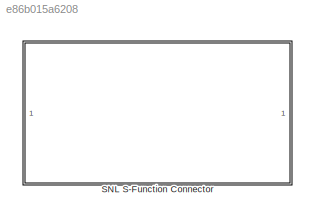
MODEL slx_e86b015a6208
KIND model
CONFIG AbsTol = auto
CONFIG EnableMultiTasking = off
CONFIG FixedStep = auto
CONFIG MaxStep = auto
CONFIG MinStep = auto
CONFIG RelTol = 1e-3
CONFIG SampleTimeConstraint = Unconstrained
CONFIG SolverName = VariableStepAuto
CONFIG StartTime = 0.0
CONFIG StopTime = 10.0
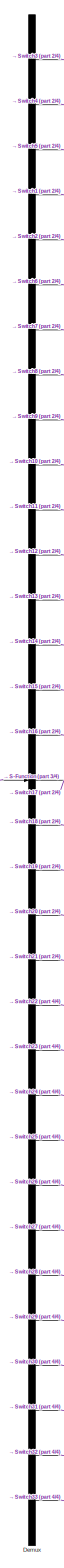
[diagram: SNL S-Function Connector - part 1/4, center side, full height]
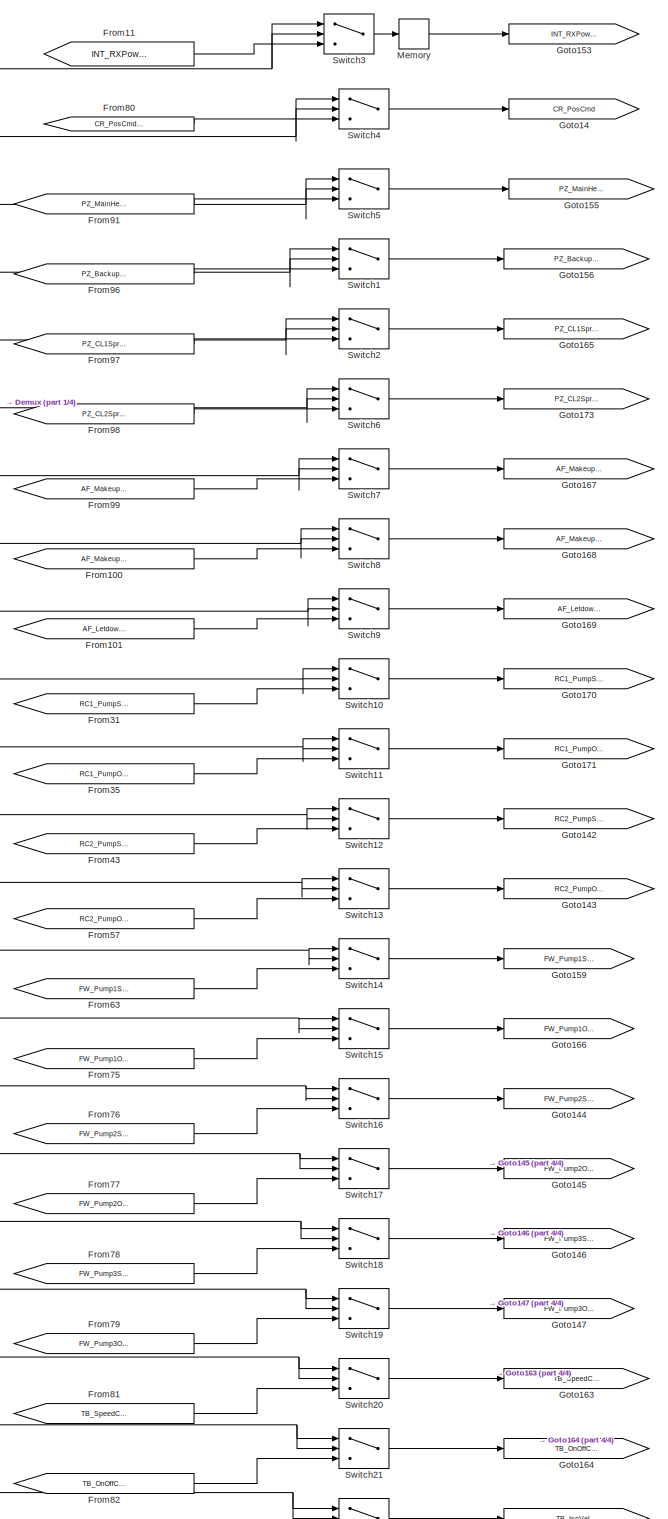
[diagram: SNL S-Function Connector - part 2/4, top right region]
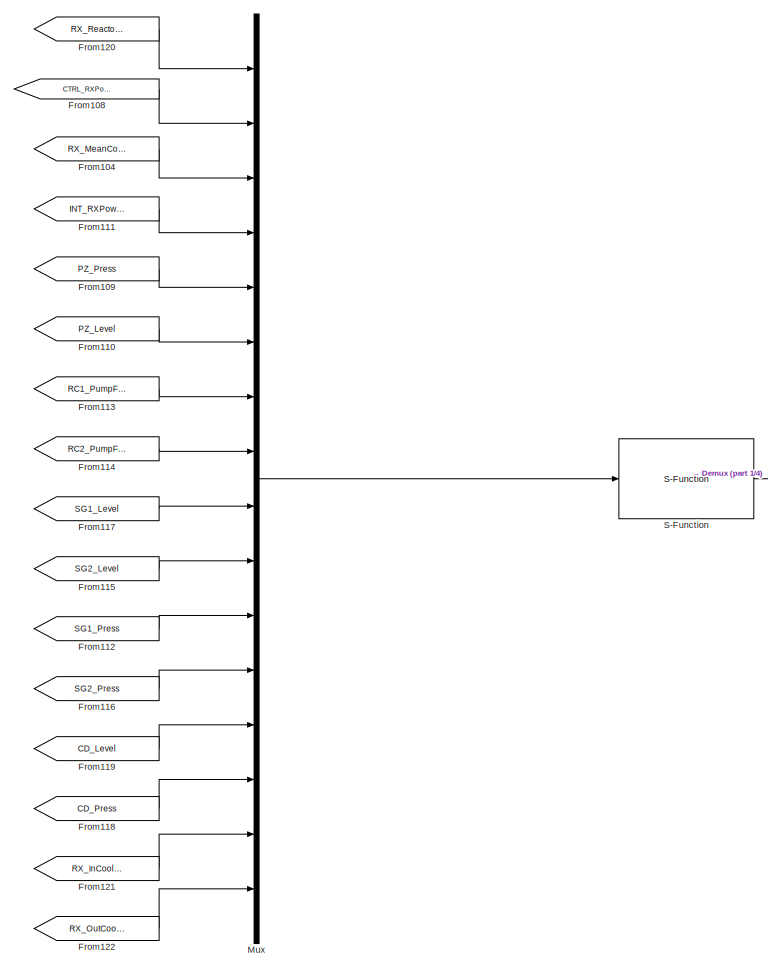
[diagram: SNL S-Function Connector - part 3/4, middle left region]
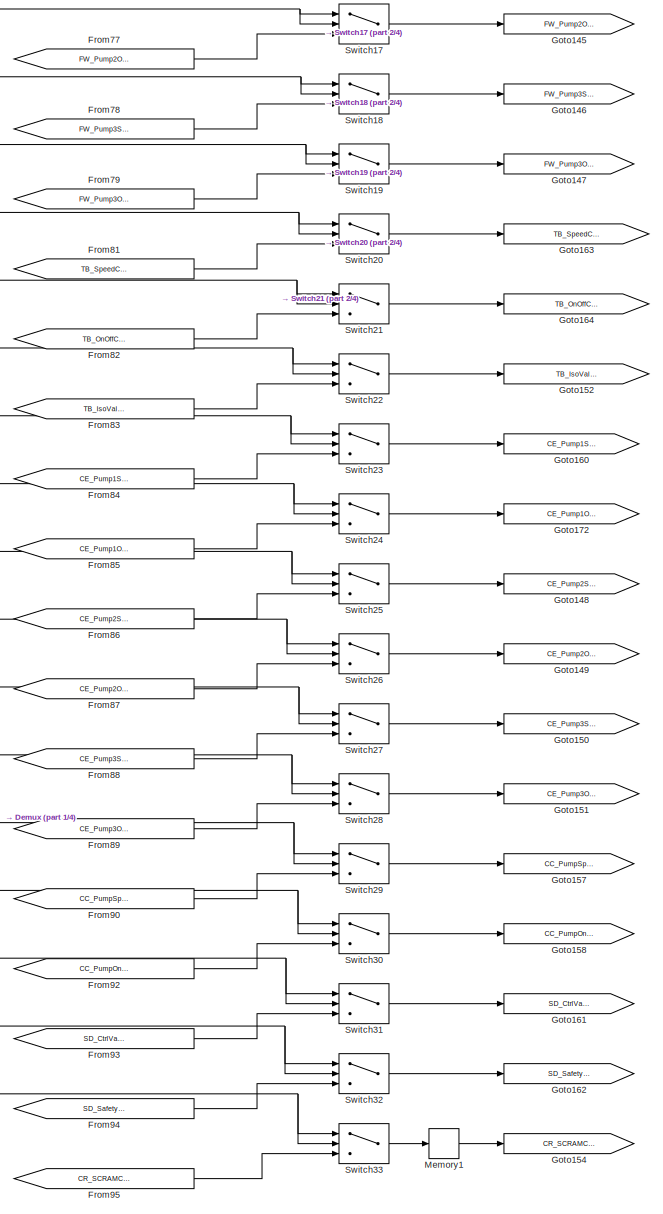
[diagram: SNL S-Function Connector - part 4/4, bottom right region]
BLOCK [SubSystem] SNL S-Function Connector
  Ports = []
  RequestExecContextInheritance = off
BLOCK [Demux] SNL S-Function Connector/Demux
  Outputs = 33
  Ports = [1, 33]
BLOCK [From] SNL S-Function Connector/From100
  GotoTag = AF_MakeupValveCmd_INT
  TagVisibility = global
BLOCK [From] SNL S-Function Connector/From101
  GotoTag = AF_LetdownValveCmd_INT
  TagVisibility = global
BLOCK [From] SNL S-Function Connector/From104
  GotoTag = RX_MeanCoolTemp
  TagVisibility = global
BLOCK [From] SNL S-Function Connector/From108
  GotoTag = CTRL_RXPowerSetpoint
BLOCK [From] SNL S-Function Connector/From109
  GotoTag = PZ_Press
  TagVisibility = global
BLOCK [From] SNL S-Function Connector/From11
  GotoTag = INT_RXPowSetpoint_INT
  TagVisibility = global
BLOCK [From] SNL S-Function Connector/From110
  GotoTag = PZ_Level
  TagVisibility = global
BLOCK [From] SNL S-Function Connector/From111
  GotoTag = INT_RXPowSetpoint
  TagVisibility = global
BLOCK [From] SNL S-Function Connector/From112
  GotoTag = SG1_Press
  TagVisibility = global
BLOCK [From] SNL S-Function Connector/From113
  GotoTag = RC1_PumpFlow
  TagVisibility = global
BLOCK [From] SNL S-Function Connector/From114
  GotoTag = RC2_PumpFlow
  TagVisibility = global
BLOCK [From] SNL S-Function Connector/From115
  GotoTag = SG2_Level
  TagVisibility = global
BLOCK [From] SNL S-Function Connector/From116
  GotoTag = SG2_Press
  IconDisplay = Signal name
  TagVisibility = global
BLOCK [From] SNL S-Function Connector/From117
  GotoTag = SG1_Level
  TagVisibility = global
BLOCK [From] SNL S-Function Connector/From118
  GotoTag = CD_Press
  TagVisibility = global
BLOCK [From] SNL S-Function Connector/From119
  GotoTag = CD_Level
  TagVisibility = global
BLOCK [From] SNL S-Function Connector/From120
  GotoTag = RX_ReactorPower
  TagVisibility = global
BLOCK [From] SNL S-Function Connector/From121
  GotoTag = RX_InCoolTemp
  TagVisibility = global
BLOCK [From] SNL S-Function Connector/From122
  GotoTag = RX_OutCoolTemp
  TagVisibility = global
BLOCK [From] SNL S-Function Connector/From31
  GotoTag = RC1_PumpSpeedCmd_INT
  TagVisibility = global
BLOCK [From] SNL S-Function Connector/From35
  GotoTag = RC1_PumpOnOffCmd_INT
  TagVisibility = global
BLOCK [From] SNL S-Function Connector/From43
  GotoTag = RC2_PumpSpeedCmd_INT
  TagVisibility = global
BLOCK [From] SNL S-Function Connector/From57
  GotoTag = RC2_PumpOnOffCmd_INT
  TagVisibility = global
BLOCK [From] SNL S-Function Connector/From63
  GotoTag = FW_Pump1SpeedCmd_INT
  TagVisibility = global
BLOCK [From] SNL S-Function Connector/From75
  GotoTag = FW_Pump1OnOffCmd_INT
  TagVisibility = global
BLOCK [From] SNL S-Function Connector/From76
  GotoTag = FW_Pump2SpeedCmd_INT
  TagVisibility = global
BLOCK [From] SNL S-Function Connector/From77
  GotoTag = FW_Pump2OnOffCmd_INT
  TagVisibility = global
BLOCK [From] SNL S-Function Connector/From78
  GotoTag = FW_Pump3SpeedCmd_INT
  TagVisibility = global
BLOCK [From] SNL S-Function Connector/From79
  GotoTag = FW_Pump3OnOffCmd_INT
  TagVisibility = global
BLOCK [From] SNL S-Function Connector/From80
  GotoTag = CR_PosCmd_INT
  TagVisibility = global
BLOCK [From] SNL S-Function Connector/From81
  GotoTag = TB_SpeedCtrlValveCmd_INT
  TagVisibility = global
BLOCK [From] SNL S-Function Connector/From82
  GotoTag = TB_OnOffCmd_INT
  TagVisibility = global
BLOCK [From] SNL S-Function Connector/From83
  GotoTag = TB_IsoValveCmd_INT
  TagVisibility = global
BLOCK [From] SNL S-Function Connector/From84
  GotoTag = CE_Pump1SpeedCmd_INT
  TagVisibility = global
BLOCK [From] SNL S-Function Connector/From85
  GotoTag = CE_Pump1OnOffCmd_INT
  TagVisibility = global
BLOCK [From] SNL S-Function Connector/From86
  GotoTag = CE_Pump2SpeedCmd_INT
  TagVisibility = global
BLOCK [From] SNL S-Function Connector/From87
  GotoTag = CE_Pump2OnOffCmd_INT
  TagVisibility = global
BLOCK [From] SNL S-Function Connector/From88
  GotoTag = CE_Pump3SpeedCmd_INT
  TagVisibility = global
BLOCK [From] SNL S-Function Connector/From89
  GotoTag = CE_Pump3OnOffCmd_INT
  TagVisibility = global
BLOCK [From] SNL S-Function Connector/From90
  GotoTag = CC_PumpSpeedCmd_INT
  TagVisibility = global
BLOCK [From] SNL S-Function Connector/From91
  GotoTag = PZ_MainHeaterPowCmd_INT
  TagVisibility = global
BLOCK [From] SNL S-Function Connector/From92
  GotoTag = CC_PumpOnOffCmd_INT
  TagVisibility = global
BLOCK [From] SNL S-Function Connector/From93
  GotoTag = SD_CtrlValveCmd_INT
  TagVisibility = global
BLOCK [From] SNL S-Function Connector/From94
  GotoTag = SD_SafetyValveOnOffCmd_INT
  TagVisibility = global
BLOCK [From] SNL S-Function Connector/From95
  GotoTag = CR_SCRAMCmd_INT
  TagVisibility = global
BLOCK [From] SNL S-Function Connector/From96
  GotoTag = PZ_BackupHeaterPowCmd_INT
  TagVisibility = global
BLOCK [From] SNL S-Function Connector/From97
  GotoTag = PZ_CL1SprayValveCmd_INT
  TagVisibility = global
BLOCK [From] SNL S-Function Connector/From98
  GotoTag = PZ_CL2SprayValveCmd_INT
  TagVisibility = global
BLOCK [From] SNL S-Function Connector/From99
  GotoTag = AF_MakeupPumpCmd_INT
  TagVisibility = global
BLOCK [Goto] SNL S-Function Connector/Goto14
  GotoTag = CR_PosCmd
  TagVisibility = global
BLOCK [Goto] SNL S-Function Connector/Goto142
  GotoTag = RC2_PumpSpeedCmd
  TagVisibility = global
BLOCK [Goto] SNL S-Function Connector/Goto143
  GotoTag = RC2_PumpOnOffCmd
  TagVisibility = global
BLOCK [Goto] SNL S-Function Connector/Goto144
  GotoTag = FW_Pump2SpeedCmd
  TagVisibility = global
BLOCK [Goto] SNL S-Function Connector/Goto145
  GotoTag = FW_Pump2OnOffCmd
  TagVisibility = global
BLOCK [Goto] SNL S-Function Connector/Goto146
  GotoTag = FW_Pump3SpeedCmd
  TagVisibility = global
BLOCK [Goto] SNL S-Function Connector/Goto147
  GotoTag = FW_Pump3OnOffCmd
  TagVisibility = global
BLOCK [Goto] SNL S-Function Connector/Goto148
  GotoTag = CE_Pump2SpeedCmd
  TagVisibility = global
BLOCK [Goto] SNL S-Function Connector/Goto149
  GotoTag = CE_Pump2OnOffCmd
  TagVisibility = global
BLOCK [Goto] SNL S-Function Connector/Goto150
  GotoTag = CE_Pump3SpeedCmd
  TagVisibility = global
BLOCK [Goto] SNL S-Function Connector/Goto151
  GotoTag = CE_Pump3OnOffCmd
  TagVisibility = global
BLOCK [Goto] SNL S-Function Connector/Goto152
  GotoTag = TB_IsoValveCmd
  TagVisibility = global
BLOCK [Goto] SNL S-Function Connector/Goto153
  GotoTag = INT_RXPowSetpoint
  TagVisibility = global
BLOCK [Goto] SNL S-Function Connector/Goto154
  GotoTag = CR_SCRAMCmd
  TagVisibility = global
BLOCK [Goto] SNL S-Function Connector/Goto155
  GotoTag = PZ_MainHeaterPowCmd
  TagVisibility = global
BLOCK [Goto] SNL S-Function Connector/Goto156
  GotoTag = PZ_BackupHeaterPowCmd
  TagVisibility = global
BLOCK [Goto] SNL S-Function Connector/Goto157
  GotoTag = CC_PumpSpeedCmd
  TagVisibility = global
BLOCK [Goto] SNL S-Function Connector/Goto158
  GotoTag = CC_PumpOnOffCmd
  TagVisibility = global
BLOCK [Goto] SNL S-Function Connector/Goto159
  GotoTag = FW_Pump1SpeedCmd
  TagVisibility = global
BLOCK [Goto] SNL S-Function Connector/Goto160
  GotoTag = CE_Pump1SpeedCmd
  TagVisibility = global
BLOCK [Goto] SNL S-Function Connector/Goto161
  GotoTag = SD_CtrlValveCmd
  TagVisibility = global
BLOCK [Goto] SNL S-Function Connector/Goto162
  GotoTag = SD_SafetyValveOnOffCmd
  TagVisibility = global
BLOCK [Goto] SNL S-Function Connector/Goto163
  GotoTag = TB_SpeedCtrlValveCmd
  TagVisibility = global
BLOCK [Goto] SNL S-Function Connector/Goto164
  GotoTag = TB_OnOffCmd
  TagVisibility = global
BLOCK [Goto] SNL S-Function Connector/Goto165
  GotoTag = PZ_CL1SprayValveCmd
  TagVisibility = global
BLOCK [Goto] SNL S-Function Connector/Goto166
  GotoTag = FW_Pump1OnOffCmd
  TagVisibility = global
BLOCK [Goto] SNL S-Function Connector/Goto167
  GotoTag = AF_MakeupPumpCmd
  TagVisibility = global
BLOCK [Goto] SNL S-Function Connector/Goto168
  GotoTag = AF_MakeupValveCmd
  TagVisibility = global
BLOCK [Goto] SNL S-Function Connector/Goto169
  GotoTag = AF_LetdownValveCmd
  TagVisibility = global
BLOCK [Goto] SNL S-Function Connector/Goto170
  GotoTag = RC1_PumpSpeedCmd
  TagVisibility = global
BLOCK [Goto] SNL S-Function Connector/Goto171
  GotoTag = RC1_PumpOnOffCmd
  TagVisibility = global
BLOCK [Goto] SNL S-Function Connector/Goto172
  GotoTag = CE_Pump1OnOffCmd
  TagVisibility = global
BLOCK [Goto] SNL S-Function Connector/Goto173
  GotoTag = PZ_CL2SprayValveCmd
  TagVisibility = global
BLOCK [Memory] SNL S-Function Connector/Memory
BLOCK [Memory] SNL S-Function Connector/Memory1
BLOCK [Mux] SNL S-Function Connector/Mux
  DisplayOption = bar
  Inputs = 16
  Ports = [16, 1]
BLOCK [S-Function] SNL S-Function Connector/S-Function
  EnableBusSupport = off
  FunctionName = sfun_connector
  Parameters = 'RX_ReactorPower;CTRL_RXPowerSetpoint;RX_MeanCoolTemp;INT_RXPowSetpoint;PZ_Press;PZ_Level;RC1_PumpFlow;RC2_PumpFlow;SG1_Level;SG2_Level;SG1_Press;SG2_Press;CD_Level;CD_Press;RX_InCoolTemp;RX_OutCoolTemp','INT_RXPowSetpoint;CR_PosCmd;PZ_MainHeaterPowCmd;PZ_BackupHeaterPowCmd;PZ_CL1SprayValveCmd;PZ_CL2SprayValveCmd;AF_MakeupPumpCmd;AF_MakeupValveCmd;AF_LetdownValveCmd;RC1_PumpSpeedCmd;RC1_PumpOnOffC...<+372ch>
  Ports = [1, 1]
  SFcnIsStateOwnerBlock = off
  SFunctionDeploymentMode = off
BLOCK [Switch] SNL S-Function Connector/Switch1
  Criteria = u2 > Threshold
  InputSameDT = off
  SaturateOnIntegerOverflow = off
  Threshold = -100000000000000
BLOCK [Switch] SNL S-Function Connector/Switch10
  Criteria = u2 > Threshold
  InputSameDT = off
  SaturateOnIntegerOverflow = off
  Threshold = -100000000000000
BLOCK [Switch] SNL S-Function Connector/Switch11
  Criteria = u2 > Threshold
  InputSameDT = off
  SaturateOnIntegerOverflow = off
  Threshold = -100000000000000
BLOCK [Switch] SNL S-Function Connector/Switch12
  Criteria = u2 > Threshold
  InputSameDT = off
  SaturateOnIntegerOverflow = off
  Threshold = -100000000000000
BLOCK [Switch] SNL S-Function Connector/Switch13
  Criteria = u2 > Threshold
  InputSameDT = off
  SaturateOnIntegerOverflow = off
  Threshold = -100000000000000
BLOCK [Switch] SNL S-Function Connector/Switch14
  Criteria = u2 > Threshold
  InputSameDT = off
  SaturateOnIntegerOverflow = off
  Threshold = -100000000000000
BLOCK [Switch] SNL S-Function Connector/Switch15
  Criteria = u2 > Threshold
  InputSameDT = off
  SaturateOnIntegerOverflow = off
  Threshold = -100000000000000
BLOCK [Switch] SNL S-Function Connector/Switch16
  Criteria = u2 > Threshold
  InputSameDT = off
  SaturateOnIntegerOverflow = off
  Threshold = -100000000000000
BLOCK [Switch] SNL S-Function Connector/Switch17
  Criteria = u2 > Threshold
  InputSameDT = off
  SaturateOnIntegerOverflow = off
  Threshold = -100000000000000
BLOCK [Switch] SNL S-Function Connector/Switch18
  Criteria = u2 > Threshold
  InputSameDT = off
  SaturateOnIntegerOverflow = off
  Threshold = -100000000000000
BLOCK [Switch] SNL S-Function Connector/Switch19
  Criteria = u2 > Threshold
  InputSameDT = off
  SaturateOnIntegerOverflow = off
  Threshold = -100000000000000
BLOCK [Switch] SNL S-Function Connector/Switch2
  Criteria = u2 > Threshold
  InputSameDT = off
  SaturateOnIntegerOverflow = off
  Threshold = -100000000000000
BLOCK [Switch] SNL S-Function Connector/Switch20
  Criteria = u2 > Threshold
  InputSameDT = off
  SaturateOnIntegerOverflow = off
  Threshold = -100000000000000
BLOCK [Switch] SNL S-Function Connector/Switch21
  Criteria = u2 > Threshold
  InputSameDT = off
  SaturateOnIntegerOverflow = off
  Threshold = -100000000000000
BLOCK [Switch] SNL S-Function Connector/Switch22
  Criteria = u2 > Threshold
  InputSameDT = off
  SaturateOnIntegerOverflow = off
  Threshold = -100000000000000
BLOCK [Switch] SNL S-Function Connector/Switch23
  Criteria = u2 > Threshold
  InputSameDT = off
  SaturateOnIntegerOverflow = off
  Threshold = -100000000000000
BLOCK [Switch] SNL S-Function Connector/Switch24
  Criteria = u2 > Threshold
  InputSameDT = off
  SaturateOnIntegerOverflow = off
  Threshold = -100000000000000
BLOCK [Switch] SNL S-Function Connector/Switch25
  Criteria = u2 > Threshold
  InputSameDT = off
  SaturateOnIntegerOverflow = off
  Threshold = -100000000000000
BLOCK [Switch] SNL S-Function Connector/Switch26
  Criteria = u2 > Threshold
  InputSameDT = off
  SaturateOnIntegerOverflow = off
  Threshold = -100000000000000
BLOCK [Switch] SNL S-Function Connector/Switch27
  Criteria = u2 > Threshold
  InputSameDT = off
  SaturateOnIntegerOverflow = off
  Threshold = -100000000000000
BLOCK [Switch] SNL S-Function Connector/Switch28
  Criteria = u2 > Threshold
  InputSameDT = off
  SaturateOnIntegerOverflow = off
  Threshold = -100000000000000
BLOCK [Switch] SNL S-Function Connector/Switch29
  Criteria = u2 > Threshold
  InputSameDT = off
  SaturateOnIntegerOverflow = off
  Threshold = -100000000000000
BLOCK [Switch] SNL S-Function Connector/Switch3
  Criteria = u2 > Threshold
  InputSameDT = off
  SaturateOnIntegerOverflow = off
  Threshold = -100000000000000
BLOCK [Switch] SNL S-Function Connector/Switch30
  Criteria = u2 > Threshold
  InputSameDT = off
  SaturateOnIntegerOverflow = off
  Threshold = -100000000000000
BLOCK [Switch] SNL S-Function Connector/Switch31
  Criteria = u2 > Threshold
  InputSameDT = off
  SaturateOnIntegerOverflow = off
  Threshold = -100000000000000
BLOCK [Switch] SNL S-Function Connector/Switch32
  Criteria = u2 > Threshold
  InputSameDT = off
  SaturateOnIntegerOverflow = off
  Threshold = -100000000000000
BLOCK [Switch] SNL S-Function Connector/Switch33
  Criteria = u2 > Threshold
  InputSameDT = off
  SaturateOnIntegerOverflow = off
  Threshold = -100000000000000
BLOCK [Switch] SNL S-Function Connector/Switch4
  Criteria = u2 > Threshold
  InputSameDT = off
  SaturateOnIntegerOverflow = off
  Threshold = -100000000000000
BLOCK [Switch] SNL S-Function Connector/Switch5
  Criteria = u2 > Threshold
  InputSameDT = off
  SaturateOnIntegerOverflow = off
  Threshold = -100000000000000
BLOCK [Switch] SNL S-Function Connector/Switch6
  Criteria = u2 > Threshold
  InputSameDT = off
  SaturateOnIntegerOverflow = off
  Threshold = -100000000000000
BLOCK [Switch] SNL S-Function Connector/Switch7
  Criteria = u2 > Threshold
  InputSameDT = off
  SaturateOnIntegerOverflow = off
  Threshold = -100000000000000
BLOCK [Switch] SNL S-Function Connector/Switch8
  Criteria = u2 > Threshold
  InputSameDT = off
  SaturateOnIntegerOverflow = off
  Threshold = -100000000000000
BLOCK [Switch] SNL S-Function Connector/Switch9
  Criteria = u2 > Threshold
  InputSameDT = off
  SaturateOnIntegerOverflow = off
  Threshold = -100000000000000
NET SNL S-Function Connector/Demux:1 -> SNL S-Function Connector/Switch3:1, SNL S-Function Connector/Switch3:2
NET SNL S-Function Connector/Demux:10 -> SNL S-Function Connector/Switch10:1, SNL S-Function Connector/Switch10:2
NET SNL S-Function Connector/Demux:11 -> SNL S-Function Connector/Switch11:1, SNL S-Function Connector/Switch11:2
NET SNL S-Function Connector/Demux:12 -> SNL S-Function Connector/Switch12:1, SNL S-Function Connector/Switch12:2
NET SNL S-Function Connector/Demux:13 -> SNL S-Function Connector/Switch13:1, SNL S-Function Connector/Switch13:2
NET SNL S-Function Connector/Demux:14 -> SNL S-Function Connector/Switch14:1, SNL S-Function Connector/Switch14:2
NET SNL S-Function Connector/Demux:15 -> SNL S-Function Connector/Switch15:1, SNL S-Function Connector/Switch15:2
NET SNL S-Function Connector/Demux:16 -> SNL S-Function Connector/Switch16:1, SNL S-Function Connector/Switch16:2
NET SNL S-Function Connector/Demux:17 -> SNL S-Function Connector/Switch17:1, SNL S-Function Connector/Switch17:2
NET SNL S-Function Connector/Demux:18 -> SNL S-Function Connector/Switch18:1, SNL S-Function Connector/Switch18:2
NET SNL S-Function Connector/Demux:19 -> SNL S-Function Connector/Switch19:1, SNL S-Function Connector/Switch19:2
NET SNL S-Function Connector/Demux:2 -> SNL S-Function Connector/Switch4:1, SNL S-Function Connector/Switch4:2
NET SNL S-Function Connector/Demux:20 -> SNL S-Function Connector/Switch20:1, SNL S-Function Connector/Switch20:2
NET SNL S-Function Connector/Demux:21 -> SNL S-Function Connector/Switch21:1, SNL S-Function Connector/Switch21:2
NET SNL S-Function Connector/Demux:22 -> SNL S-Function Connector/Switch22:1, SNL S-Function Connector/Switch22:2
NET SNL S-Function Connector/Demux:23 -> SNL S-Function Connector/Switch23:1, SNL S-Function Connector/Switch23:2
NET SNL S-Function Connector/Demux:24 -> SNL S-Function Connector/Switch24:1, SNL S-Function Connector/Switch24:2
NET SNL S-Function Connector/Demux:25 -> SNL S-Function Connector/Switch25:1, SNL S-Function Connector/Switch25:2
NET SNL S-Function Connector/Demux:26 -> SNL S-Function Connector/Switch26:1, SNL S-Function Connector/Switch26:2
NET SNL S-Function Connector/Demux:27 -> SNL S-Function Connector/Switch27:1, SNL S-Function Connector/Switch27:2
NET SNL S-Function Connector/Demux:28 -> SNL S-Function Connector/Switch28:1, SNL S-Function Connector/Switch28:2
NET SNL S-Function Connector/Demux:29 -> SNL S-Function Connector/Switch29:1, SNL S-Function Connector/Switch29:2
NET SNL S-Function Connector/Demux:3 -> SNL S-Function Connector/Switch5:1, SNL S-Function Connector/Switch5:2
NET SNL S-Function Connector/Demux:30 -> SNL S-Function Connector/Switch30:1, SNL S-Function Connector/Switch30:2
NET SNL S-Function Connector/Demux:31 -> SNL S-Function Connector/Switch31:1, SNL S-Function Connector/Switch31:2
NET SNL S-Function Connector/Demux:32 -> SNL S-Function Connector/Switch32:1, SNL S-Function Connector/Switch32:2
NET SNL S-Function Connector/Demux:33 -> SNL S-Function Connector/Switch33:1, SNL S-Function Connector/Switch33:2
NET SNL S-Function Connector/Demux:4 -> SNL S-Function Connector/Switch1:1, SNL S-Function Connector/Switch1:2
NET SNL S-Function Connector/Demux:5 -> SNL S-Function Connector/Switch2:1, SNL S-Function Connector/Switch2:2
NET SNL S-Function Connector/Demux:6 -> SNL S-Function Connector/Switch6:1, SNL S-Function Connector/Switch6:2
NET SNL S-Function Connector/Demux:7 -> SNL S-Function Connector/Switch7:1, SNL S-Function Connector/Switch7:2
NET SNL S-Function Connector/Demux:8 -> SNL S-Function Connector/Switch8:1, SNL S-Function Connector/Switch8:2
NET SNL S-Function Connector/Demux:9 -> SNL S-Function Connector/Switch9:1, SNL S-Function Connector/Switch9:2
LINE SNL S-Function Connector/From100:1 -> SNL S-Function Connector/Switch8:3
LINE SNL S-Function Connector/From101:1 -> SNL S-Function Connector/Switch9:3
LINE SNL S-Function Connector/From104:1 -> SNL S-Function Connector/Mux:3
LINE SNL S-Function Connector/From108:1 -> SNL S-Function Connector/Mux:2
LINE SNL S-Function Connector/From109:1 -> SNL S-Function Connector/Mux:5
LINE SNL S-Function Connector/From110:1 -> SNL S-Function Connector/Mux:6
LINE SNL S-Function Connector/From111:1 -> SNL S-Function Connector/Mux:4
LINE SNL S-Function Connector/From112:1 -> SNL S-Function Connector/Mux:11
LINE SNL S-Function Connector/From113:1 -> SNL S-Function Connector/Mux:7
LINE SNL S-Function Connector/From114:1 -> SNL S-Function Connector/Mux:8
LINE SNL S-Function Connector/From115:1 -> SNL S-Function Connector/Mux:10
LINE SNL S-Function Connector/From116:1 -> SNL S-Function Connector/Mux:12
LINE SNL S-Function Connector/From117:1 -> SNL S-Function Connector/Mux:9
LINE SNL S-Function Connector/From118:1 -> SNL S-Function Connector/Mux:14
LINE SNL S-Function Connector/From119:1 -> SNL S-Function Connector/Mux:13
LINE SNL S-Function Connector/From11:1 -> SNL S-Function Connector/Switch3:3
LINE SNL S-Function Connector/From120:1 -> SNL S-Function Connector/Mux:1
LINE SNL S-Function Connector/From121:1 -> SNL S-Function Connector/Mux:15
LINE SNL S-Function Connector/From122:1 -> SNL S-Function Connector/Mux:16
LINE SNL S-Function Connector/From31:1 -> SNL S-Function Connector/Switch10:3
LINE SNL S-Function Connector/From35:1 -> SNL S-Function Connector/Switch11:3
LINE SNL S-Function Connector/From43:1 -> SNL S-Function Connector/Switch12:3
LINE SNL S-Function Connector/From57:1 -> SNL S-Function Connector/Switch13:3
LINE SNL S-Function Connector/From63:1 -> SNL S-Function Connector/Switch14:3
LINE SNL S-Function Connector/From75:1 -> SNL S-Function Connector/Switch15:3
LINE SNL S-Function Connector/From76:1 -> SNL S-Function Connector/Switch16:3
LINE SNL S-Function Connector/From77:1 -> SNL S-Function Connector/Switch17:3
LINE SNL S-Function Connector/From78:1 -> SNL S-Function Connector/Switch18:3
LINE SNL S-Function Connector/From79:1 -> SNL S-Function Connector/Switch19:3
LINE SNL S-Function Connector/From80:1 -> SNL S-Function Connector/Switch4:3
LINE SNL S-Function Connector/From81:1 -> SNL S-Function Connector/Switch20:3
LINE SNL S-Function Connector/From82:1 -> SNL S-Function Connector/Switch21:3
LINE SNL S-Function Connector/From83:1 -> SNL S-Function Connector/Switch22:3
LINE SNL S-Function Connector/From84:1 -> SNL S-Function Connector/Switch23:3
LINE SNL S-Function Connector/From85:1 -> SNL S-Function Connector/Switch24:3
LINE SNL S-Function Connector/From86:1 -> SNL S-Function Connector/Switch25:3
LINE SNL S-Function Connector/From87:1 -> SNL S-Function Connector/Switch26:3
LINE SNL S-Function Connector/From88:1 -> SNL S-Function Connector/Switch27:3
LINE SNL S-Function Connector/From89:1 -> SNL S-Function Connector/Switch28:3
LINE SNL S-Function Connector/From90:1 -> SNL S-Function Connector/Switch29:3
LINE SNL S-Function Connector/From91:1 -> SNL S-Function Connector/Switch5:3
LINE SNL S-Function Connector/From92:1 -> SNL S-Function Connector/Switch30:3
LINE SNL S-Function Connector/From93:1 -> SNL S-Function Connector/Switch31:3
LINE SNL S-Function Connector/From94:1 -> SNL S-Function Connector/Switch32:3
LINE SNL S-Function Connector/From95:1 -> SNL S-Function Connector/Switch33:3
LINE SNL S-Function Connector/From96:1 -> SNL S-Function Connector/Switch1:3
LINE SNL S-Function Connector/From97:1 -> SNL S-Function Connector/Switch2:3
LINE SNL S-Function Connector/From98:1 -> SNL S-Function Connector/Switch6:3
LINE SNL S-Function Connector/From99:1 -> SNL S-Function Connector/Switch7:3
LINE SNL S-Function Connector/Memory1:1 -> SNL S-Function Connector/Goto154:1
LINE SNL S-Function Connector/Memory:1 -> SNL S-Function Connector/Goto153:1
LINE SNL S-Function Connector/Mux:1 -> SNL S-Function Connector/S-Function:1
LINE SNL S-Function Connector/S-Function:1 -> SNL S-Function Connector/Demux:1
LINE SNL S-Function Connector/Switch10:1 -> SNL S-Function Connector/Goto170:1
LINE SNL S-Function Connector/Switch11:1 -> SNL S-Function Connector/Goto171:1
LINE SNL S-Function Connector/Switch12:1 -> SNL S-Function Connector/Goto142:1
LINE SNL S-Function Connector/Switch13:1 -> SNL S-Function Connector/Goto143:1
LINE SNL S-Function Connector/Switch14:1 -> SNL S-Function Connector/Goto159:1
LINE SNL S-Function Connector/Switch15:1 -> SNL S-Function Connector/Goto166:1
LINE SNL S-Function Connector/Switch16:1 -> SNL S-Function Connector/Goto144:1
LINE SNL S-Function Connector/Switch17:1 -> SNL S-Function Connector/Goto145:1
LINE SNL S-Function Connector/Switch18:1 -> SNL S-Function Connector/Goto146:1
LINE SNL S-Function Connector/Switch19:1 -> SNL S-Function Connector/Goto147:1
LINE SNL S-Function Connector/Switch1:1 -> SNL S-Function Connector/Goto156:1
LINE SNL S-Function Connector/Switch20:1 -> SNL S-Function Connector/Goto163:1
LINE SNL S-Function Connector/Switch21:1 -> SNL S-Function Connector/Goto164:1
LINE SNL S-Function Connector/Switch22:1 -> SNL S-Function Connector/Goto152:1
LINE SNL S-Function Connector/Switch23:1 -> SNL S-Function Connector/Goto160:1
LINE SNL S-Function Connector/Switch24:1 -> SNL S-Function Connector/Goto172:1
LINE SNL S-Function Connector/Switch25:1 -> SNL S-Function Connector/Goto148:1
LINE SNL S-Function Connector/Switch26:1 -> SNL S-Function Connector/Goto149:1
LINE SNL S-Function Connector/Switch27:1 -> SNL S-Function Connector/Goto150:1
LINE SNL S-Function Connector/Switch28:1 -> SNL S-Function Connector/Goto151:1
LINE SNL S-Function Connector/Switch29:1 -> SNL S-Function Connector/Goto157:1
LINE SNL S-Function Connector/Switch2:1 -> SNL S-Function Connector/Goto165:1
LINE SNL S-Function Connector/Switch30:1 -> SNL S-Function Connector/Goto158:1
LINE SNL S-Function Connector/Switch31:1 -> SNL S-Function Connector/Goto161:1
LINE SNL S-Function Connector/Switch32:1 -> SNL S-Function Connector/Goto162:1
LINE SNL S-Function Connector/Switch33:1 -> SNL S-Function Connector/Memory1:1
LINE SNL S-Function Connector/Switch3:1 -> SNL S-Function Connector/Memory:1
LINE SNL S-Function Connector/Switch4:1 -> SNL S-Function Connector/Goto14:1
LINE SNL S-Function Connector/Switch5:1 -> SNL S-Function Connector/Goto155:1
LINE SNL S-Function Connector/Switch6:1 -> SNL S-Function Connector/Goto173:1
LINE SNL S-Function Connector/Switch7:1 -> SNL S-Function Connector/Goto167:1
LINE SNL S-Function Connector/Switch8:1 -> SNL S-Function Connector/Goto168:1
LINE SNL S-Function Connector/Switch9:1 -> SNL S-Function Connector/Goto169:1
note: NET lines group one-source signal fan-out (src -> all destinations, sorted); 1:1 wires keep LINE
